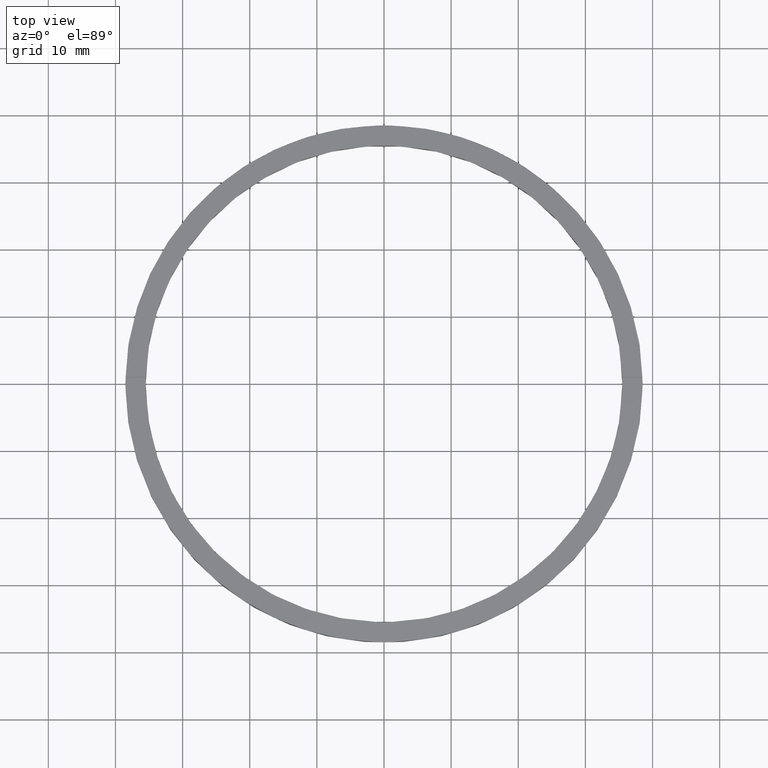
[diagram: clean part render]
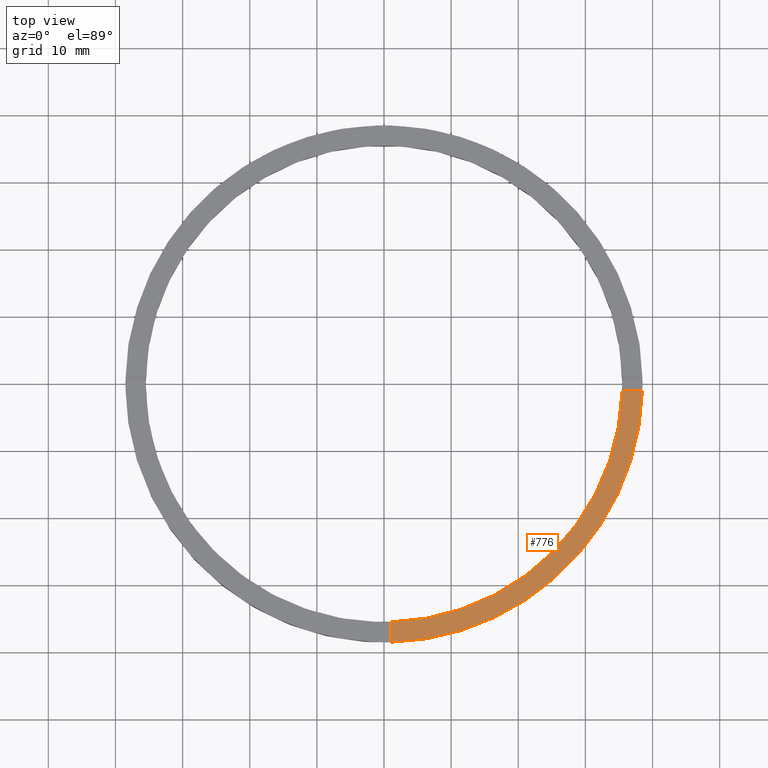
[diagram: same view with one face highlighted and labeled with its STEP entity id]
A machine part, top view. The second image highlights one B-rep face of the part: STEP entity #776.
In plain terms, the highlighted planar face has unit normal (0, 0, 1).
Its self-contained STEP definition (entity closure, byte-faithful):
#6 = DIRECTION ( 'NONE',  ( -1.301042606982605074E-16, 1.000000000000000000, -0.000000000000000000 ) ) ;
#21 = CARTESIAN_POINT ( 'NONE',  ( 0.9999999999998400169, -35.48591269785801927, 3.500000000000000000 ) ) ;
#22 = AXIS2_PLACEMENT_3D ( 'NONE', #107, #756, #745 ) ;
#107 = CARTESIAN_POINT ( 'NONE',  ( 0.000000000000000000, 0.000000000000000000, 3.500000000000000000 ) ) ;
#145 = AXIS2_PLACEMENT_3D ( 'NONE', #449, #236, #572 ) ;
#161 = CARTESIAN_POINT ( 'NONE',  ( 28.49999999999998934, -1.000000000000157874, 3.500000000000000000 ) ) ;
#179 = VERTEX_POINT ( 'NONE', #680 ) ;
#236 = DIRECTION ( 'NONE',  ( 0.000000000000000000, 0.000000000000000000, 1.000000000000000000 ) ) ;
#239 = ORIENTED_EDGE ( 'NONE', *, *, #690, .T. ) ;
#250 = VERTEX_POINT ( 'NONE', #21 ) ;
#263 = DIRECTION ( 'NONE',  ( 1.000000000000000000, 6.505213034913025371E-17, 0.000000000000000000 ) ) ;
#275 = CARTESIAN_POINT ( 'NONE',  ( 0.000000000000000000, 0.000000000000000000, 3.500000000000000000 ) ) ;
#286 = EDGE_CURVE ( 'NONE', #179, #714, #477, .T. ) ;
#319 = FACE_OUTER_BOUND ( 'NONE', #535, .T. ) ;
#336 = CIRCLE ( 'NONE', #649, 35.50000000000000711 ) ;
#364 = CARTESIAN_POINT ( 'NONE',  ( 0.9999999999998391287, -28.50000000000017764, 3.500000000000000000 ) ) ;
#397 = DIRECTION ( 'NONE',  ( 0.000000000000000000, 0.000000000000000000, 1.000000000000000000 ) ) ;
#413 = ORIENTED_EDGE ( 'NONE', *, *, #778, .F. ) ;
#426 = PLANE ( 'NONE',  #22 ) ;
#445 = EDGE_CURVE ( 'NONE', #702, #250, #779, .T. ) ;
#446 = ORIENTED_EDGE ( 'NONE', *, *, #445, .F. ) ;
#447 = ORIENTED_EDGE ( 'NONE', *, *, #286, .F. ) ;
#449 = CARTESIAN_POINT ( 'NONE',  ( 0.000000000000000000, 0.000000000000000000, 3.500000000000000000 ) ) ;
#477 = LINE ( 'NONE', #161, #772 ) ;
#506 = VECTOR ( 'NONE', #6, 1000.000000000000000 ) ;
#518 = CARTESIAN_POINT ( 'NONE',  ( 38.48701079585163143, -1.000000000000157208, 3.500000000000000000 ) ) ;
#535 = EDGE_LOOP ( 'NONE', ( #447, #413, #446, #239 ) ) ;
#572 = DIRECTION ( 'NONE',  ( 1.000000000000000000, 0.000000000000000000, 0.000000000000000000 ) ) ;
#614 = CIRCLE ( 'NONE', #145, 38.50000000000000000 ) ;
#629 = CARTESIAN_POINT ( 'NONE',  ( 0.9999999999998404610, -38.48701079585163853, 3.500000000000000000 ) ) ;
#649 = AXIS2_PLACEMENT_3D ( 'NONE', #275, #397, #672 ) ;
#672 = DIRECTION ( 'NONE',  ( 1.000000000000000000, 0.000000000000000000, 0.000000000000000000 ) ) ;
#680 = CARTESIAN_POINT ( 'NONE',  ( 35.48591269785800506, -1.000000000000157430, 3.500000000000000000 ) ) ;
#690 = EDGE_CURVE ( 'NONE', #702, #714, #614, .T. ) ;
#702 = VERTEX_POINT ( 'NONE', #629 ) ;
#714 = VERTEX_POINT ( 'NONE', #518 ) ;
#745 = DIRECTION ( 'NONE',  ( 1.000000000000000000, 0.000000000000000000, -0.000000000000000000 ) ) ;
#756 = DIRECTION ( 'NONE',  ( 0.000000000000000000, 0.000000000000000000, 1.000000000000000000 ) ) ;
#772 = VECTOR ( 'NONE', #263, 1000.000000000000000 ) ;
#776 = ADVANCED_FACE ( 'NONE', ( #319 ), #426, .T. ) ;
#778 = EDGE_CURVE ( 'NONE', #250, #179, #336, .T. ) ;
#779 = LINE ( 'NONE', #364, #506 ) ;